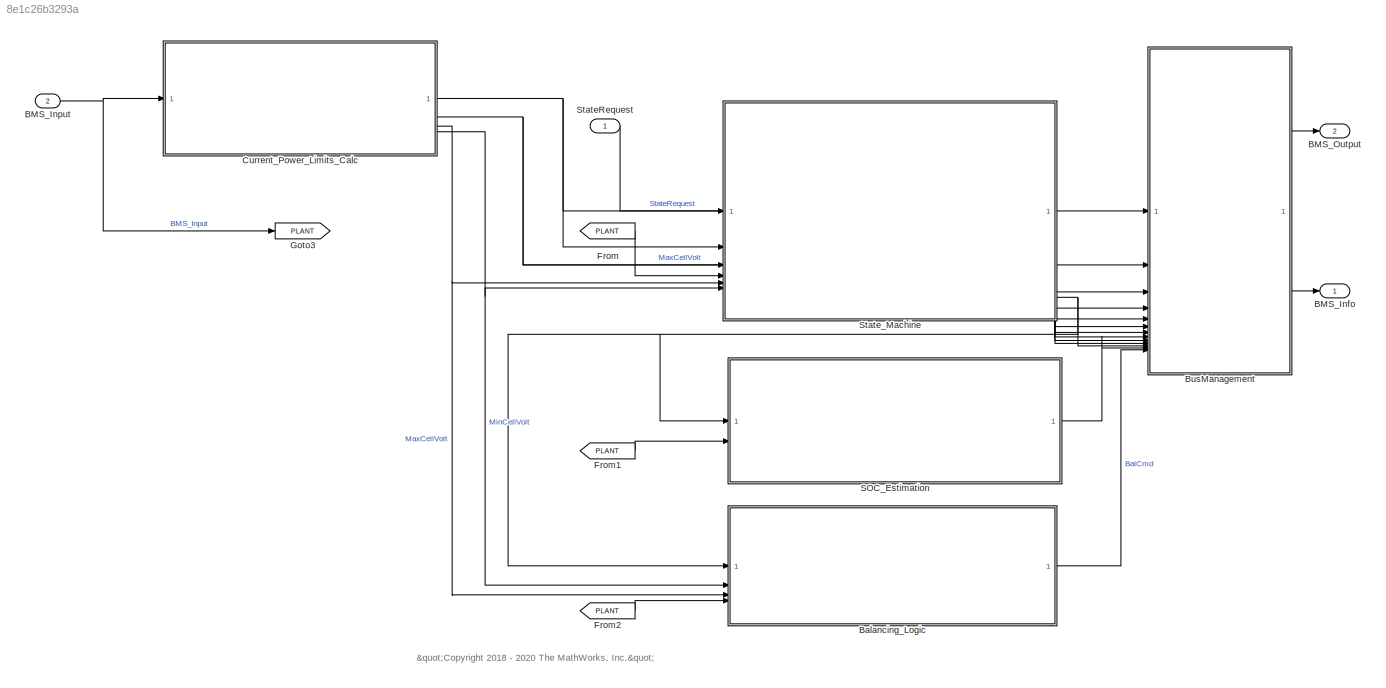
MODEL slx_8e1c26b3293a
KIND model
BLOCK [Outport] BMS_Info
  BusOutputAsStruct = on
  OutDataTypeStr = Bus: BMS_Info
  SamplingMode = Sample based
  SignalName = BMS_Info
  SignalType = real
  VectorParamsAs1DForOutWhenUnconnected = off
BLOCK [Inport] BMS_Input
  BusOutputAsStruct = on
  OutDataTypeStr = Bus: BMS_Input
  Port = 2
BLOCK [Outport] BMS_Output
  BusOutputAsStruct = on
  OutDataTypeStr = Bus: BMS_Output
  Port = 2
  SamplingMode = Sample based
  SignalName = BMS_Output
  SignalType = real
  VectorParamsAs1DForOutWhenUnconnected = off
BLOCK [ModelReference] Balancing_Logic
  ModelNameDialog = Balancing_Logic
  ModelReferenceVersion = 5.0
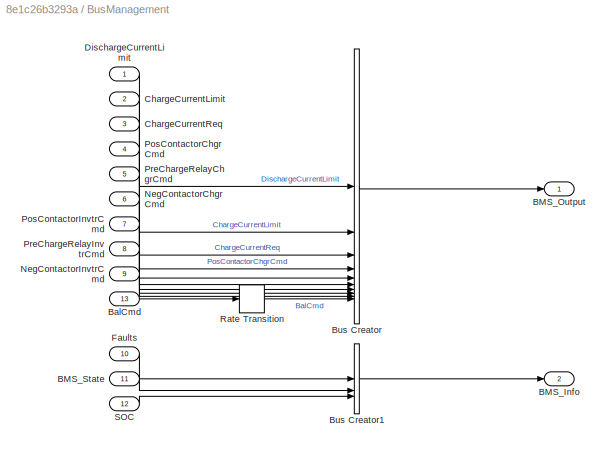
BLOCK [SubSystem] BusManagement
BLOCK [Outport] BusManagement/BMS_Info
  OutDataTypeStr = Bus: BMS_Info
  Port = 2
BLOCK [Outport] BusManagement/BMS_Output
BLOCK [Inport] BusManagement/BMS_State
  Port = 11
BLOCK [Inport] BusManagement/BalCmd
  Port = 13
BLOCK [BusCreator] BusManagement/Bus Creator
  DisplayOption = bar
  InheritFromInputs = on
  Inputs = 10
  NonVirtualBus = on
  OutDataTypeStr = Bus: BMS_Output
BLOCK [BusCreator] BusManagement/Bus Creator1
  DisplayOption = bar
  InheritFromInputs = on
  Inputs = 3
  NonVirtualBus = on
  OutDataTypeStr = Bus: BMS_Info
BLOCK [Inport] BusManagement/ChargeCurrentLimit
  Port = 2
BLOCK [Inport] BusManagement/ChargeCurrentReq
  Port = 3
BLOCK [Inport] BusManagement/DischargeCurrentLimit
BLOCK [Inport] BusManagement/Faults
  Port = 10
BLOCK [Inport] BusManagement/NegContactorChgrCmd
  Port = 6
BLOCK [Inport] BusManagement/NegContactorInvtrCmd
  Port = 9
BLOCK [Inport] BusManagement/PosContactorChgrCmd
  Port = 4
BLOCK [Inport] BusManagement/PosContactorInvtrCmd
  Port = 7
BLOCK [Inport] BusManagement/PreChargeRelayChgrCmd
  Port = 5
BLOCK [Inport] BusManagement/PreChargeRelayInvtrCmd
  Port = 8
BLOCK [RateTransition] BusManagement/Rate Transition
  Deterministic = off
  Integrity = off
BLOCK [Inport] BusManagement/SOC
  Port = 12
BLOCK [ModelReference] Current_Power_Limits_Calc
  ModelNameDialog = CurrPowerLimCalc.slx
  ModelReferenceVersion = 3.1
BLOCK [From] From
  GotoTag = PLANT
BLOCK [From] From1
  GotoTag = PLANT
BLOCK [From] From2
  GotoTag = PLANT
BLOCK [Goto] Goto3
  GotoTag = PLANT
BLOCK [ModelReference] SOC_Estimation
  ModelNameDialog = SOC_Estimation.slx
  ModelReferenceVersion = 6.0
BLOCK [Inport] StateRequest
  NameLocation = top
  OutDataTypeStr = Enum: SRE
  PortDimensions = 1
  SampleTime = ts
  SignalType = real
  VarSizeSig = No
BLOCK [ModelReference] State_Machine
  ModelNameDialog = State_Machine
  ModelReferenceVersion = 3.1
ANNOTATION (root): "<copyright redacted>
NET BMS_Input:1 -> Current_Power_Limits_Calc:1, Goto3:1
LINE Balancing_Logic:1 -> BusManagement:13
LINE BusManagement/BMS_State:1 -> BusManagement/Bus Creator1:2
LINE BusManagement/BalCmd:1 -> BusManagement/Rate Transition:1
LINE BusManagement/Bus Creator1:1 -> BusManagement/BMS_Info:1
LINE BusManagement/Bus Creator:1 -> BusManagement/BMS_Output:1
LINE BusManagement/ChargeCurrentLimit:1 -> BusManagement/Bus Creator:2
LINE BusManagement/ChargeCurrentReq:1 -> BusManagement/Bus Creator:3
LINE BusManagement/DischargeCurrentLimit:1 -> BusManagement/Bus Creator:1
LINE BusManagement/Faults:1 -> BusManagement/Bus Creator1:1
LINE BusManagement/NegContactorChgrCmd:1 -> BusManagement/Bus Creator:6
LINE BusManagement/NegContactorInvtrCmd:1 -> BusManagement/Bus Creator:9
LINE BusManagement/PosContactorChgrCmd:1 -> BusManagement/Bus Creator:4
LINE BusManagement/PosContactorInvtrCmd:1 -> BusManagement/Bus Creator:7
LINE BusManagement/PreChargeRelayChgrCmd:1 -> BusManagement/Bus Creator:5
LINE BusManagement/PreChargeRelayInvtrCmd:1 -> BusManagement/Bus Creator:8
LINE BusManagement/Rate Transition:1 -> BusManagement/Bus Creator:10
LINE BusManagement/SOC:1 -> BusManagement/Bus Creator1:3
LINE BusManagement:1 -> BMS_Output:1
LINE BusManagement:2 -> BMS_Info:1
NET Current_Power_Limits_Calc:1 -> BusManagement:1, State_Machine:2
NET Current_Power_Limits_Calc:2 -> BusManagement:2, State_Machine:3
NET Current_Power_Limits_Calc:3 -> Balancing_Logic:3, State_Machine:5
NET Current_Power_Limits_Calc:4 -> Balancing_Logic:2, State_Machine:6
LINE From1:1 -> SOC_Estimation:2
LINE From2:1 -> Balancing_Logic:4
LINE From:1 -> State_Machine:4
LINE SOC_Estimation:1 -> BusManagement:12
LINE StateRequest:1 -> State_Machine:1
LINE State_Machine:1 -> BusManagement:3
LINE State_Machine:2 -> BusManagement:4
LINE State_Machine:3 -> BusManagement:5
LINE State_Machine:4 -> BusManagement:6
LINE State_Machine:5 -> BusManagement:7
LINE State_Machine:6 -> BusManagement:8
LINE State_Machine:7 -> BusManagement:9
LINE State_Machine:8 -> BusManagement:10
NET State_Machine:9 -> Balancing_Logic:1, BusManagement:11, SOC_Estimation:1
note: NET lines group one-source signal fan-out (src -> all destinations, sorted); 1:1 wires keep LINE
